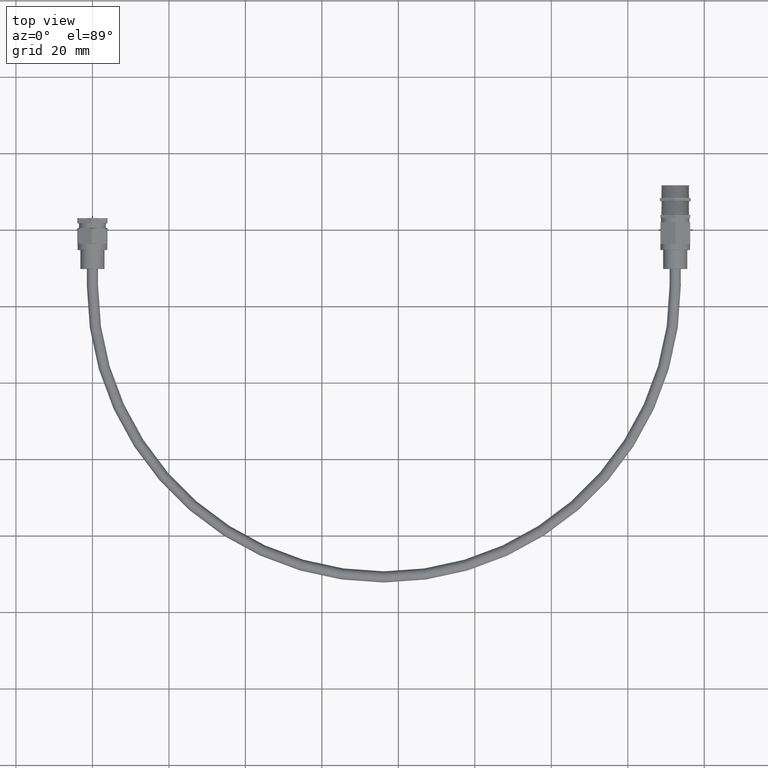
[diagram: clean part render]
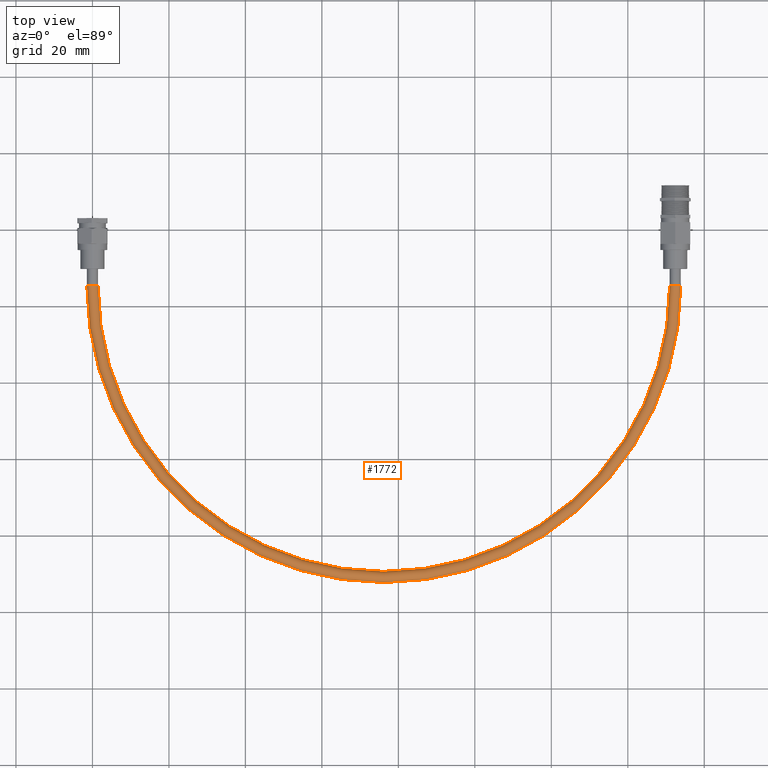
[diagram: same view with one face highlighted and labeled with its STEP entity id]
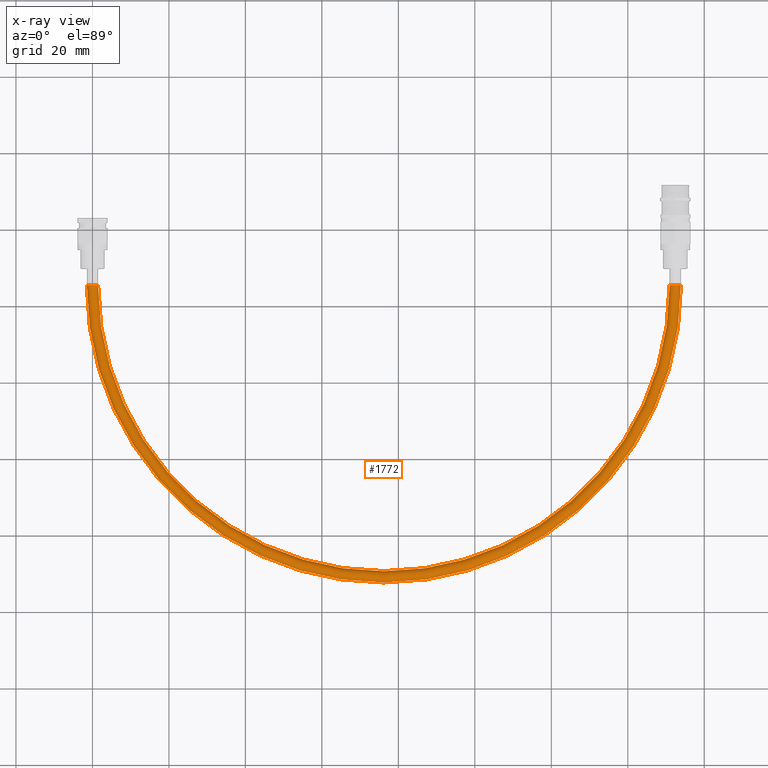
[diagram: x-ray of the same camera — body ghosted, the highlighted face saturated]
A machine part, top view. The second image highlights one B-rep face of the part: STEP entity #1772.
The next image is the same camera in x-ray: the body ghosted, the highlighted face saturated — about 0% of this face is hidden behind the body in this view.
In plain terms, the highlighted toroidal blend (fillet) surface has major radius 76.2 mm and minor (blend) radius 1.4605 mm.
Its self-contained STEP definition (entity closure, byte-faithful):
#1226 = VERTEX_POINT ( 'NONE', #5955 ) ;
#1227 = VERTEX_POINT ( 'NONE', #5956 ) ;
#1228 = VERTEX_POINT ( 'NONE', #5957 ) ;
#1229 = VERTEX_POINT ( 'NONE', #5958 ) ;
#1243 = VERTEX_POINT ( 'NONE', #6202 ) ;
#1275 = VERTEX_POINT ( 'NONE', #6234 ) ;
#1347 = EDGE_LOOP ( 'NONE', ( #1875, #1879, #1883, #1887, #1891, #1847 ) ) ;
#1772 = ADVANCED_FACE ( 'NONE', ( #7016 ), #7010, .T. ) ;
#1847 = ORIENTED_EDGE ( 'NONE', *, *, #5034, .F. ) ;
#1875 = ORIENTED_EDGE ( 'NONE', *, *, #5038, .F. ) ;
#1879 = ORIENTED_EDGE ( 'NONE', *, *, #5039, .T. ) ;
#1883 = ORIENTED_EDGE ( 'NONE', *, *, #5037, .F. ) ;
#1887 = ORIENTED_EDGE ( 'NONE', *, *, #5036, .F. ) ;
#1891 = ORIENTED_EDGE ( 'NONE', *, *, #5035, .F. ) ;
#2202 = AXIS2_PLACEMENT_3D ( 'NONE', #2440, #2436, #2442 ) ;
#2340 = AXIS2_PLACEMENT_3D ( 'NONE', #3510, #3511, #3512 ) ;
#2341 = AXIS2_PLACEMENT_3D ( 'NONE', #3513, #3514, #3515 ) ;
#2342 = AXIS2_PLACEMENT_3D ( 'NONE', #3516, #3517, #3518 ) ;
#2343 = AXIS2_PLACEMENT_3D ( 'NONE', #3519, #3520, #3521 ) ;
#2344 = AXIS2_PLACEMENT_3D ( 'NONE', #3523, #3524, #3525 ) ;
#2345 = AXIS2_PLACEMENT_3D ( 'NONE', #3526, #3527, #3528 ) ;
#2436 = DIRECTION ( 'NONE',  ( 0.0000000000000000000, 0.0000000000000000000, 1.000000000000000000 ) ) ;
#2440 = CARTESIAN_POINT ( 'NONE',  ( 3.000000000000000400, -0.5752007457617434000, 0.0000000000000000000 ) ) ;
#2442 = DIRECTION ( 'NONE',  ( 1.000000000000000000, 0.0000000000000000000, 0.0000000000000000000 ) ) ;
#3130 = CIRCLE ( 'NONE', #2342, 0.05749999999999994000 ) ;
#3133 = CIRCLE ( 'NONE', #2340, 0.05749999999999996800 ) ;
#3134 = CIRCLE ( 'NONE', #2341, 2.942499999999999000 ) ;
#3136 = CIRCLE ( 'NONE', #2343, 0.05749999999999994000 ) ;
#3137 = CIRCLE ( 'NONE', #2344, 0.05749999999999996800 ) ;
#3138 = CIRCLE ( 'NONE', #2345, 3.057499999999999200 ) ;
#3510 = CARTESIAN_POINT ( 'NONE',  ( 0.0000000000000000000, -0.5752007457617436300, 0.0000000000000000000 ) ) ;
#3511 = DIRECTION ( 'NONE',  ( -0.0000000000000000000, 1.000000000000000000, -0.0000000000000000000 ) ) ;
#3512 = DIRECTION ( 'NONE',  ( 0.0000000000000000000, 0.0000000000000000000, 1.000000000000000000 ) ) ;
#3513 = CARTESIAN_POINT ( 'NONE',  ( 3.000000000000000400, -0.5752007457617434000, -7.041719095097273100E-018 ) ) ;
#3514 = DIRECTION ( 'NONE',  ( 0.0000000000000000000, 0.0000000000000000000, 1.000000000000000000 ) ) ;
#3515 = DIRECTION ( 'NONE',  ( 1.000000000000000000, 0.0000000000000000000, 0.0000000000000000000 ) ) ;
#3516 = CARTESIAN_POINT ( 'NONE',  ( 5.999999999999999100, -0.5752007457617427400, 0.0000000000000000000 ) ) ;
#3517 = DIRECTION ( 'NONE',  ( 0.0000000000000000000, 1.000000000000000000, 0.0000000000000000000 ) ) ;
#3518 = DIRECTION ( 'NONE',  ( 0.0000000000000000000, 0.0000000000000000000, 1.000000000000000000 ) ) ;
#3519 = CARTESIAN_POINT ( 'NONE',  ( 5.999999999999999100, -0.5752007457617427400, 0.0000000000000000000 ) ) ;
#3520 = DIRECTION ( 'NONE',  ( 0.0000000000000000000, 1.000000000000000000, 0.0000000000000000000 ) ) ;
#3521 = DIRECTION ( 'NONE',  ( 0.0000000000000000000, 0.0000000000000000000, 1.000000000000000000 ) ) ;
#3523 = CARTESIAN_POINT ( 'NONE',  ( 0.0000000000000000000, -0.5752007457617436300, 0.0000000000000000000 ) ) ;
#3524 = DIRECTION ( 'NONE',  ( -0.0000000000000000000, 1.000000000000000000, -0.0000000000000000000 ) ) ;
#3525 = DIRECTION ( 'NONE',  ( 0.0000000000000000000, 0.0000000000000000000, 1.000000000000000000 ) ) ;
#3526 = CARTESIAN_POINT ( 'NONE',  ( 3.000000000000000400, -0.5752007457617434000, 0.0000000000000000000 ) ) ;
#3527 = DIRECTION ( 'NONE',  ( 0.0000000000000000000, 0.0000000000000000000, 1.000000000000000000 ) ) ;
#3528 = DIRECTION ( 'NONE',  ( 1.000000000000000000, 0.0000000000000000000, 0.0000000000000000000 ) ) ;
#5034 = EDGE_CURVE ( 'NONE', #1228, #1229, #3133, .T. ) ;
#5035 = EDGE_CURVE ( 'NONE', #1229, #1275, #3134, .T. ) ;
#5036 = EDGE_CURVE ( 'NONE', #1275, #1227, #3130, .T. ) ;
#5037 = EDGE_CURVE ( 'NONE', #1227, #1226, #3136, .T. ) ;
#5038 = EDGE_CURVE ( 'NONE', #1243, #1228, #3137, .T. ) ;
#5039 = EDGE_CURVE ( 'NONE', #1243, #1226, #3138, .T. ) ;
#5955 = CARTESIAN_POINT ( 'NONE',  ( 6.057499999999999200, -0.5752007457617427400, 0.0000000000000000000 ) ) ;
#5956 = CARTESIAN_POINT ( 'NONE',  ( 6.000130396826781600, -0.5752007457617436300, 0.05749985214474519900 ) ) ;
#5957 = CARTESIAN_POINT ( 'NONE',  ( 0.0000000000000000000, -0.5752007457617436300, 0.05749999999999996800 ) ) ;
#5958 = CARTESIAN_POINT ( 'NONE',  ( 0.05749999999999996800, -0.5752007457617436300, -7.041719095097196000E-018 ) ) ;
#6202 = CARTESIAN_POINT ( 'NONE',  ( -0.05749999999999950300, -0.5752007457617436300, 0.0000000000000000000 ) ) ;
#6234 = CARTESIAN_POINT ( 'NONE',  ( 5.942499999999999000, -0.5752007457617427400, -7.041719095097248400E-018 ) ) ;
#7010 = TOROIDAL_SURFACE ( 'NONE', #2202, 2.999999999999999100, 0.05749999999999994000 ) ;
#7016 = FACE_OUTER_BOUND ( 'NONE', #1347, .T. ) ;